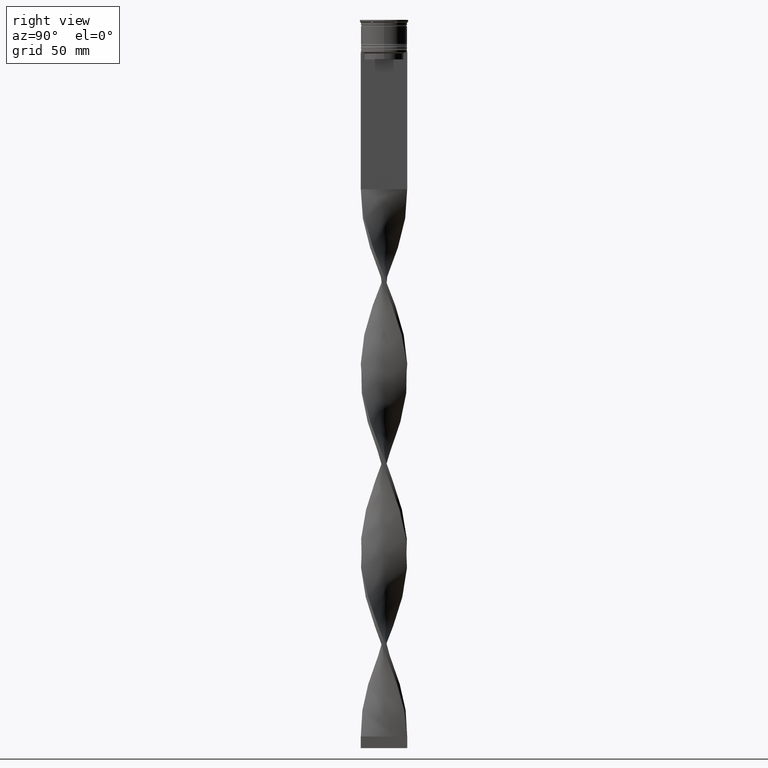
[diagram: clean part render]
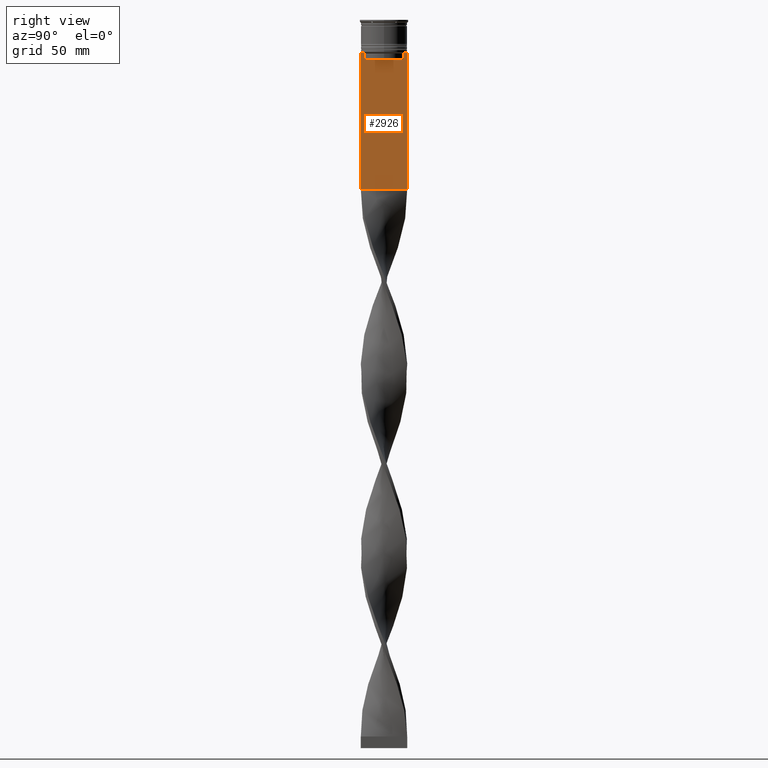
[diagram: same view with one face highlighted and labeled with its STEP entity id]
A machine part, right view. The second image highlights one B-rep face of the part: STEP entity #2926.
In plain terms, the highlighted planar face has unit normal (-1, 0, 0).
Its self-contained STEP definition (entity closure, byte-faithful):
#94 = CARTESIAN_POINT ( 'NONE',  ( 0.7500000000000001110, 8.366450860430608927, -14.50000000000000000 ) ) ;
#131 = VERTEX_POINT ( 'NONE', #1636 ) ;
#135 = CARTESIAN_POINT ( 'NONE',  ( 0.7500000000000001110, -10.00000000000000533, -14.00000000000000178 ) ) ;
#183 = VERTEX_POINT ( 'NONE', #2327 ) ;
#192 = CARTESIAN_POINT ( 'NONE',  ( 0.7500000000000001110, -9.871550030263739117, -14.00000000000000178 ) ) ;
#250 = VECTOR ( 'NONE', #2675, 1000.000000000000000 ) ;
#253 = EDGE_CURVE ( 'NONE', #183, #400, #1351, .T. ) ;
#296 = EDGE_LOOP ( 'NONE', ( #3056, #1888, #357, #831, #2895, #2480, #1483, #2659, #1499, #3728, #2703, #302 ) ) ;
#302 = ORIENTED_EDGE ( 'NONE', *, *, #2557, .T. ) ;
#355 = VERTEX_POINT ( 'NONE', #2065 ) ;
#357 = ORIENTED_EDGE ( 'NONE', *, *, #4100, .T. ) ;
#382 = LINE ( 'NONE', #3096, #2956 ) ;
#400 = VERTEX_POINT ( 'NONE', #1026 ) ;
#439 = CARTESIAN_POINT ( 'NONE',  ( 0.7500000000000001110, 8.868342573446296839, -14.00000000000000178 ) ) ;
#494 = DIRECTION ( 'NONE',  ( -1.000000000000000000, 0.000000000000000000, 0.000000000000000000 ) ) ;
#556 = FACE_OUTER_BOUND ( 'NONE', #296, .T. ) ;
#601 = EDGE_CURVE ( 'NONE', #4214, #400, #2072, .T. ) ;
#611 = CARTESIAN_POINT ( 'NONE',  ( 0.7500000000000001110, -8.366450860430608927, -14.50000000000000000 ) ) ;
#831 = ORIENTED_EDGE ( 'NONE', *, *, #1362, .T. ) ;
#850 = VERTEX_POINT ( 'NONE', #1126 ) ;
#863 = DIRECTION ( 'NONE',  ( 0.000000000000000000, 0.000000000000000000, -1.000000000000000000 ) ) ;
#1026 = CARTESIAN_POINT ( 'NONE',  ( 0.7500000000000002220, 9.999999999999998224, -73.00000000000001421 ) ) ;
#1046 = CARTESIAN_POINT ( 'NONE',  ( 0.7500000000000001110, 8.533766897779925031, -14.33335221373273605 ) ) ;
#1081 = CARTESIAN_POINT ( 'NONE',  ( 0.7500000000000001110, -8.533766903463440912, -14.33335220807192023 ) ) ;
#1126 = CARTESIAN_POINT ( 'NONE',  ( 0.7500000000000001110, 8.366450860430608927, -17.00000000000000000 ) ) ;
#1233 = VECTOR ( 'NONE', #1437, 1000.000000000000000 ) ;
#1259 = EDGE_CURVE ( 'NONE', #3750, #3602, #2939, .T. ) ;
#1271 = VERTEX_POINT ( 'NONE', #2672 ) ;
#1313 = VECTOR ( 'NONE', #3273, 1000.000000000000000 ) ;
#1351 = LINE ( 'NONE', #3992, #3014 ) ;
#1362 = EDGE_CURVE ( 'NONE', #850, #3750, #382, .T. ) ;
#1387 = DIRECTION ( 'NONE',  ( 0.000000000000000000, -1.000000000000000000, 0.000000000000000000 ) ) ;
#1430 = B_SPLINE_CURVE_WITH_KNOTS ( 'NONE', 3,
 ( #2052, #1081, #2120, #3381 ),
 .UNSPECIFIED., .F., .F.,
 ( 4, 4 ),
 ( 0.03866293624047253963, 0.03937282246709320616 ),
 .UNSPECIFIED. ) ;
#1437 = DIRECTION ( 'NONE',  ( 0.000000000000000000, -1.000000000000000000, 0.000000000000000000 ) ) ;
#1477 = EDGE_CURVE ( 'NONE', #1823, #183, #1843, .T. ) ;
#1483 = ORIENTED_EDGE ( 'NONE', *, *, #2960, .T. ) ;
#1499 = ORIENTED_EDGE ( 'NONE', *, *, #1477, .T. ) ;
#1512 = VECTOR ( 'NONE', #1858, 1000.000000000000000 ) ;
#1636 = CARTESIAN_POINT ( 'NONE',  ( 0.7500000000000001110, 9.871550030263739117, -14.00000000000000178 ) ) ;
#1823 = VERTEX_POINT ( 'NONE', #2983 ) ;
#1828 = CARTESIAN_POINT ( 'NONE',  ( 0.7500000000000001110, -10.00000000000000533, -14.00000000000000178 ) ) ;
#1843 = LINE ( 'NONE', #3828, #2885 ) ;
#1858 = DIRECTION ( 'NONE',  ( 0.000000000000000000, -1.000000000000000000, 0.000000000000000000 ) ) ;
#1888 = ORIENTED_EDGE ( 'NONE', *, *, #3251, .T. ) ;
#1959 = DIRECTION ( 'NONE',  ( 0.000000000000000000, -1.000000000000000000, 0.000000000000000000 ) ) ;
#2027 = CARTESIAN_POINT ( 'NONE',  ( 0.7500000000000001110, 9.999999999999998224, 6.056171120131581098 ) ) ;
#2052 = CARTESIAN_POINT ( 'NONE',  ( 0.7500000000000001110, -8.366450860430608927, -14.50000000000000000 ) ) ;
#2065 = CARTESIAN_POINT ( 'NONE',  ( 0.7500000000000001110, -8.868342573446296839, -14.00000000000000178 ) ) ;
#2072 = LINE ( 'NONE', #2027, #250 ) ;
#2079 = EDGE_CURVE ( 'NONE', #131, #3937, #2138, .T. ) ;
#2120 = CARTESIAN_POINT ( 'NONE',  ( 0.7500000000000001110, -8.701063080777121428, -14.16668447713511725 ) ) ;
#2138 = LINE ( 'NONE', #3487, #1512 ) ;
#2157 = VERTEX_POINT ( 'NONE', #192 ) ;
#2199 = AXIS2_PLACEMENT_3D ( 'NONE', #4185, #494, #3865 ) ;
#2327 = CARTESIAN_POINT ( 'NONE',  ( 0.7500000000000001110, -10.00000000000000533, -73.00000000000001421 ) ) ;
#2329 = CARTESIAN_POINT ( 'NONE',  ( 0.7500000000000001110, -8.366450860430608927, 0.000000000000000000 ) ) ;
#2344 = VECTOR ( 'NONE', #2776, 1000.000000000000000 ) ;
#2474 = CARTESIAN_POINT ( 'NONE',  ( 0.7500000000000001110, 9.999999999999998224, -14.00000000000000178 ) ) ;
#2480 = ORIENTED_EDGE ( 'NONE', *, *, #4226, .T. ) ;
#2557 = EDGE_CURVE ( 'NONE', #4214, #131, #2876, .T. ) ;
#2581 = LINE ( 'NONE', #2891, #4002 ) ;
#2659 = ORIENTED_EDGE ( 'NONE', *, *, #4220, .T. ) ;
#2672 = CARTESIAN_POINT ( 'NONE',  ( 0.7500000000000001110, 8.366450860430608927, -14.50000000000000000 ) ) ;
#2675 = DIRECTION ( 'NONE',  ( 0.000000000000000000, 0.000000000000000000, -1.000000000000000000 ) ) ;
#2703 = ORIENTED_EDGE ( 'NONE', *, *, #601, .F. ) ;
#2710 = CARTESIAN_POINT ( 'NONE',  ( 0.7500000000000001110, -8.366450860430608927, -17.00000000000000000 ) ) ;
#2776 = DIRECTION ( 'NONE',  ( 0.000000000000000000, -1.000000000000000000, 0.000000000000000000 ) ) ;
#2868 = PLANE ( 'NONE',  #2199 ) ;
#2876 = LINE ( 'NONE', #1828, #1233 ) ;
#2885 = VECTOR ( 'NONE', #863, 1000.000000000000000 ) ;
#2891 = CARTESIAN_POINT ( 'NONE',  ( 0.7500000000000001110, -10.00000000000000533, -14.00000000000000178 ) ) ;
#2895 = ORIENTED_EDGE ( 'NONE', *, *, #1259, .T. ) ;
#2926 = ADVANCED_FACE ( 'NONE', ( #556 ), #2868, .F. ) ;
#2939 = LINE ( 'NONE', #2329, #3715 ) ;
#2956 = VECTOR ( 'NONE', #1387, 1000.000000000000000 ) ;
#2960 = EDGE_CURVE ( 'NONE', #355, #2157, #2581, .T. ) ;
#2978 = CARTESIAN_POINT ( 'NONE',  ( 0.7500000000000001110, 8.868342573446296839, -14.00000000000000178 ) ) ;
#2983 = CARTESIAN_POINT ( 'NONE',  ( 0.7500000000000001110, -10.00000000000000533, -14.00000000000000178 ) ) ;
#3014 = VECTOR ( 'NONE', #4019, 1000.000000000000000 ) ;
#3056 = ORIENTED_EDGE ( 'NONE', *, *, #2079, .T. ) ;
#3096 = CARTESIAN_POINT ( 'NONE',  ( 0.7500000000000001110, 8.400000000000003908, -17.00000000000000000 ) ) ;
#3145 = LINE ( 'NONE', #135, #2344 ) ;
#3251 = EDGE_CURVE ( 'NONE', #3937, #1271, #3341, .T. ) ;
#3273 = DIRECTION ( 'NONE',  ( 0.000000000000000000, 0.000000000000000000, -1.000000000000000000 ) ) ;
#3311 = DIRECTION ( 'NONE',  ( -0.000000000000000000, -0.000000000000000000, 1.000000000000000000 ) ) ;
#3341 = B_SPLINE_CURVE_WITH_KNOTS ( 'NONE', 3,
 ( #2978, #4018, #1046, #94 ),
 .UNSPECIFIED., .F., .F.,
 ( 4, 4 ),
 ( 0.01512225952876174867, 0.01583070519299695222 ),
 .UNSPECIFIED. ) ;
#3381 = CARTESIAN_POINT ( 'NONE',  ( 0.7500000000000001110, -8.868342573446296839, -14.00000000000000178 ) ) ;
#3487 = CARTESIAN_POINT ( 'NONE',  ( 0.7500000000000001110, -10.00000000000000533, -14.00000000000000178 ) ) ;
#3601 = CARTESIAN_POINT ( 'NONE',  ( 0.7500000000000001110, 8.366450860430608927, 0.000000000000000000 ) ) ;
#3602 = VERTEX_POINT ( 'NONE', #611 ) ;
#3682 = LINE ( 'NONE', #3601, #1313 ) ;
#3715 = VECTOR ( 'NONE', #3311, 1000.000000000000000 ) ;
#3728 = ORIENTED_EDGE ( 'NONE', *, *, #253, .T. ) ;
#3750 = VERTEX_POINT ( 'NONE', #2710 ) ;
#3828 = CARTESIAN_POINT ( 'NONE',  ( 0.7500000000000001110, -10.00000000000000533, 6.056171120131581098 ) ) ;
#3865 = DIRECTION ( 'NONE',  ( 0.000000000000000000, 0.000000000000000000, 1.000000000000000000 ) ) ;
#3937 = VERTEX_POINT ( 'NONE', #439 ) ;
#3992 = CARTESIAN_POINT ( 'NONE',  ( 0.7500000000000001110, -10.00000000000000533, -73.00000000000001421 ) ) ;
#4002 = VECTOR ( 'NONE', #1959, 1000.000000000000000 ) ;
#4018 = CARTESIAN_POINT ( 'NONE',  ( 0.7500000000000001110, 8.701063075415250481, -14.16668448247791545 ) ) ;
#4019 = DIRECTION ( 'NONE',  ( 0.000000000000000000, 1.000000000000000000, 0.000000000000000000 ) ) ;
#4100 = EDGE_CURVE ( 'NONE', #1271, #850, #3682, .T. ) ;
#4185 = CARTESIAN_POINT ( 'NONE',  ( 0.7500000000000001110, -10.00000000000000533, 6.056171120131581098 ) ) ;
#4214 = VERTEX_POINT ( 'NONE', #2474 ) ;
#4220 = EDGE_CURVE ( 'NONE', #2157, #1823, #3145, .T. ) ;
#4226 = EDGE_CURVE ( 'NONE', #3602, #355, #1430, .T. ) ;